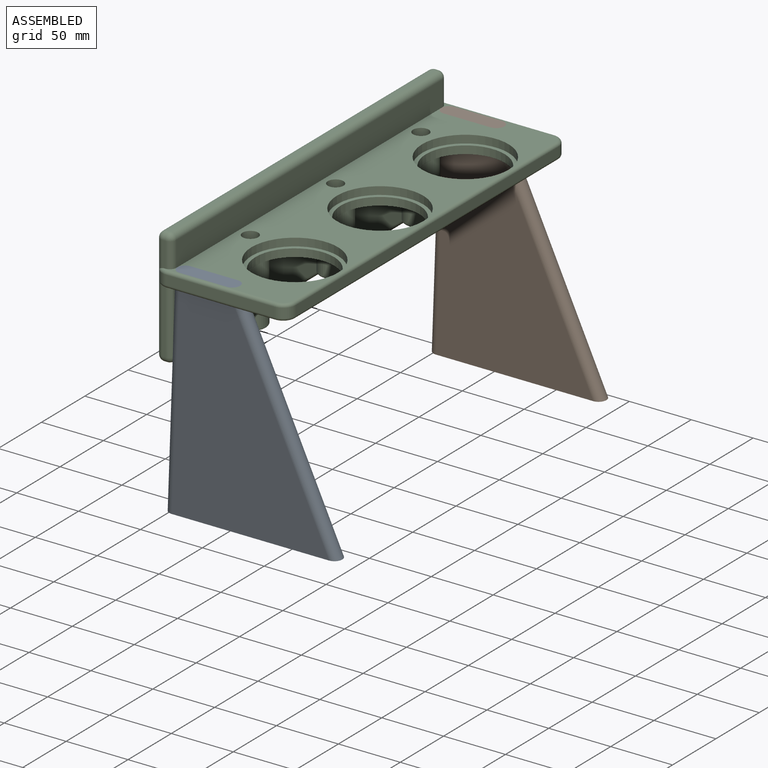
[diagram: assembled view]
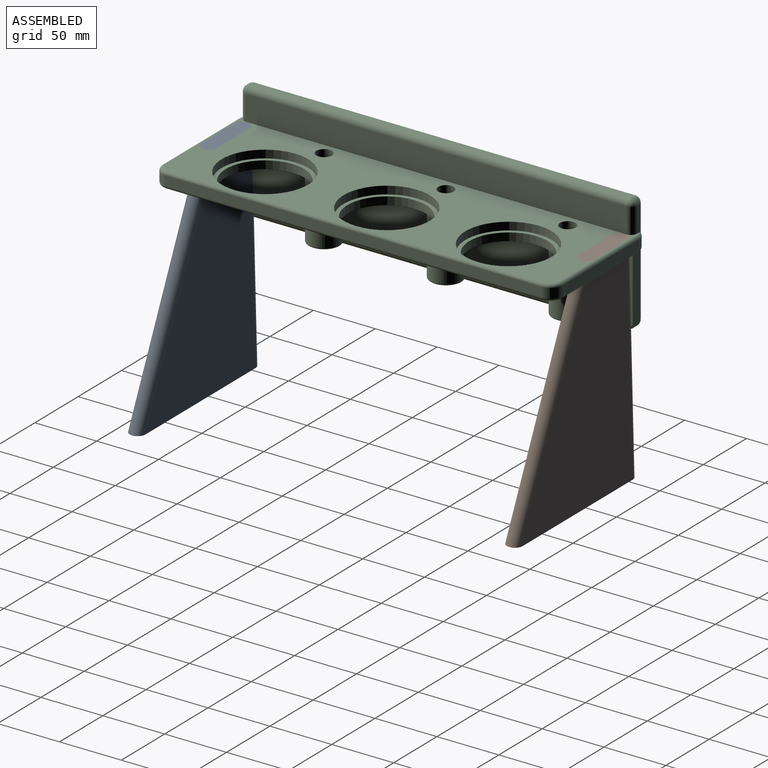
[diagram: assembled view, second angle]
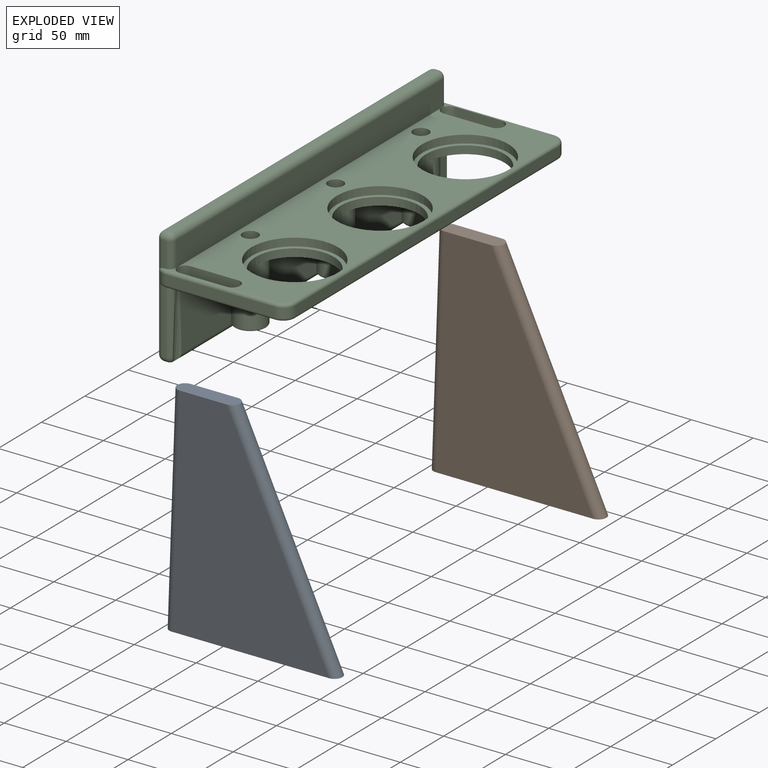
[diagram: exploded view]
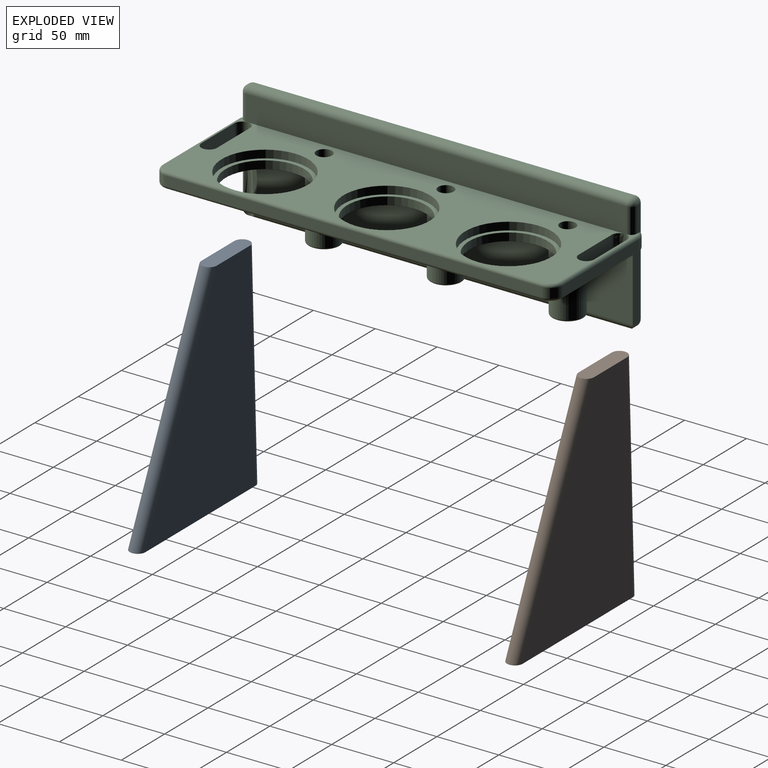
[diagram: exploded view, second angle]
ASSEMBLY  parts=3 mates=2
PART A: 6 faces, bbox 139.7x12.7x177.8 mm
  f0: plane 50.8x12.7mm, normal (0,0,1), area 610.5mm2, adj f2,f3,f4,f5
  f1: plane 139.7x12.7mm, normal (0,0,-1), area 1739.7mm2, adj f2,f3,f4,f5
  f2: plane 177.8x127mm, normal (0,1,0), area 14677.4mm2, adj f0,f1,f3,f5
  f3: bspline ~177.8x114.3mm, area 3726.2mm2, adj f0,f1,f2,f4
  f4: plane 177.8x127mm, normal (0,-1,0), area 14677.4mm2, adj f0,f1,f3,f5
  f5: bspline ~177.8x91.02mm, area 3543.5mm2, adj f0,f1,f2,f4
PART B: 6 faces, bbox 139.7x12.7x177.8 mm
  f0: plane 50.8x12.7mm, normal (0,0,1), area 610.5mm2, adj f2,f3,f4,f5
  f1: plane 139.7x12.7mm, normal (0,0,-1), area 1739.7mm2, adj f2,f3,f4,f5
  f2: plane 177.8x127mm, normal (0,1,0), area 14677.4mm2, adj f0,f1,f3,f5
  f3: bspline ~177.8x114.3mm, area 3726.2mm2, adj f0,f1,f2,f4
  f4: plane 177.8x127mm, normal (0,-1,0), area 14677.4mm2, adj f0,f1,f3,f5
  f5: bspline ~177.8x91.02mm, area 3543.5mm2, adj f0,f1,f2,f4
PART C: 87 faces, bbox 146.6x326x203.7 mm
  f0: plane 318.77x98.3mm, normal (0,0,1), area 16448.1mm2, adj f1,f2,f3,f7,f9,f10,f20,f21
  f1: cylinder r=6.35mm len=58.42mm, axis (0,0,1), area 2330.9mm2, adj f0,f79
  f2: cylinder r=6.35mm len=58.42mm, axis (0,0,1), area 2330.9mm2, adj f0,f78
  f3: cylinder r=6.35mm len=58.42mm, axis (0,0,1), area 2330.9mm2, adj f0,f77
  f4: plane 89.71x52.07mm, normal (1,0,0), area 4392.6mm2, adj f13,f55,f73,f75,f80,f81
  f5: plane 62.51x52.07mm, normal (1,0,0), area 3038.1mm2, adj f13,f55,f73,f81,f86
  f6: plane 89.71x52.07mm, normal (1,0,0), area 4392.6mm2, adj f13,f55,f71,f75,f80,f82
  f7: plane 20.7x2.71mm, normal (0,-1,0), area 51.7mm2, adj f0,f42,f56,f61,f62
  f8: plane 52.45x7.79mm, normal (0,1,0), area 396.9mm2, adj f12,f13,f45,f58,f64
  f9: bspline ~177.8x91.02mm, area 106.3mm2, adj f0,f13,f22,f45
  f10: torus R=7.62mm, axis (0,0,-1), area 28.1mm2, adj f0,f11,f31,f46,f64
  f11: cylinder r=10.16mm len=8.34mm, axis (0,0,-1), area 74.6mm2, adj f10,f12,f19,f64
  f12: torus R=7.62mm, axis (0,0,1), area 28.1mm2, adj f8,f11,f13,f35,f64
  f13: plane 319.29x98.81mm, normal (0,0,-1), area 17200.7mm2, adj f4,f5,f6,f8,f9,f12,f14,f15
  f14: cylinder r=31.75mm len=63.5mm, axis (0,0,1), area 1266.8mm2, adj f13,f29
  f15: cylinder r=31.75mm len=63.5mm, axis (0,0,1), area 1266.8mm2, adj f13,f27
  f16: cylinder r=31.75mm len=63.5mm, axis (0,0,1), area 1266.8mm2, adj f13,f25
  f17: plane 303.53x7.62mm, normal (1,0,0), area 2312.9mm2, adj f32,f33,f37,f40
  f18: plane 87.63x7.62mm, normal (0,-1,0), area 667.7mm2, adj f30,f34,f40,f43
  f19: plane 87.63x7.62mm, normal (0,1,0), area 667.7mm2, adj f11,f31,f35,f37
  f20: plane 44.45x12.7mm, normal (0,-1,0), area 524.2mm2, adj f0,f13,f21,f23
  f21: bspline ~177.8x114.3mm, area 266.4mm2, adj f0,f13,f20,f22
  f22: plane 44.45x12.7mm, normal (0,1,0), area 524.2mm2, adj f0,f9,f13,f21
  f23: bspline ~177.8x91.02mm, area 106.3mm2, adj f0,f13,f20,f45
  f24: cylinder r=34.92mm len=69.85mm, axis (0,0,1), area 1393.4mm2, adj f0,f25
  f25: plane 69.85x69.85mm, normal (0,0,1), area 665.1mm2, adj f16,f24
  f26: cylinder r=34.92mm len=69.85mm, axis (0,0,1), area 1393.4mm2, adj f0,f27
  f27: plane 69.85x69.85mm, normal (0,0,1), area 665.1mm2, adj f15,f26
  f28: cylinder r=34.92mm len=69.85mm, axis (0,0,1), area 1393.4mm2, adj f0,f29
  f29: plane 69.85x69.85mm, normal (0,0,1), area 665.1mm2, adj f14,f28
  f30: cylinder r=2.54mm len=87.63mm, axis (1,0,0), area 349.6mm2, adj f0,f18,f41,f42
  f31: cylinder r=2.54mm len=87.63mm, axis (-1,0,0), area 349.6mm2, adj f0,f10,f19,f38
  f32: cylinder r=2.54mm len=303.53mm, axis (0,1,0), area 1211mm2, adj f0,f17,f38,f41
  f33: cylinder r=2.54mm len=303.53mm, axis (0,1,0), area 1211mm2, adj f13,f17,f36,f39
  f34: cylinder r=2.54mm len=87.63mm, axis (-1,0,0), area 349.6mm2, adj f13,f18,f39,f44
  f35: cylinder r=2.54mm len=87.63mm, axis (1,0,0), area 349.6mm2, adj f12,f13,f19,f36
  f36: torus R=7.62mm, axis (0,0,1), area 57.9mm2, adj f13,f33,f35,f37
  f37: cylinder r=10.16mm len=10.16mm, axis (0,0,1), area 121.6mm2, adj f17,f19,f36,f38
  f38: torus R=7.62mm, axis (0,0,-1), area 57.9mm2, adj f0,f31,f32,f37
  f39: torus R=7.62mm, axis (0,0,1), area 57.9mm2, adj f13,f33,f34,f40
  f40: cylinder r=10.16mm len=10.16mm, axis (0,0,-1), area 121.6mm2, adj f17,f18,f39,f41
  f41: torus R=7.62mm, axis (0,0,-1), area 57.9mm2, adj f0,f30,f32,f40
  f42: torus R=7.62mm, axis (0,0,-1), area 28.1mm2, adj f0,f7,f30,f43,f56
  f43: cylinder r=10.16mm len=8.34mm, axis (0,0,1), area 74.6mm2, adj f18,f42,f44,f56
  f44: torus R=7.62mm, axis (0,0,1), area 28.1mm2, adj f13,f34,f43,f47,f56
  f45: plane 312.42x85.09mm, normal (1,0,0), area 8266.7mm2, adj f0,f8,f9,f13,f23,f55,f61,f67
  f46: plane 20.7x2.71mm, normal (0,1,0), area 51.7mm2, adj f0,f10,f64,f68,f70
  f47: plane 52.45x2.71mm, normal (0,-1,0), area 132.4mm2, adj f13,f44,f51,f52,f56
  f48: plane 307.34x2.54mm, normal (0,0,-1), area 780.6mm2, adj f52,f55,f57,f58
  f49: plane 307.34x2.54mm, normal (0,0,1), area 780.6mm2, adj f62,f63,f67,f68
  f50: plane 307.34x85.09mm, normal (-1,0,0), area 26151.6mm2, adj f56,f57,f63,f64
  f51: cylinder r=5.08mm len=52.07mm, axis (0,0,1), area 315.9mm2, adj f13,f47,f53,f86
  f52: cylinder r=5.08mm len=5.08mm, axis (1,0,0), area 20.3mm2, adj f47,f48,f53,f54
  f53: sphere r=5.08mm, area 29.5mm2, adj f51,f52,f55,f86
  f54: sphere r=5.08mm, area 40.5mm2, adj f52,f56,f57
  f55: cylinder r=5.08mm len=312.42mm, axis (0,-1,0), area 2451.1mm2, adj f4,f5,f6,f45,f48,f53,f58,f72
  f56: cylinder r=5.08mm len=85.09mm, axis (0,0,-1), area 641mm2, adj f7,f42,f43,f44,f47,f50,f54,f59
  f57: cylinder r=5.08mm len=307.34mm, axis (0,1,0), area 2452.5mm2, adj f48,f50,f54,f60
  f58: cylinder r=5.08mm len=7.62mm, axis (-1,0,0), area 46.1mm2, adj f8,f48,f55,f60
  f59: sphere r=5.08mm, area 40.5mm2, adj f56,f62,f63
  f60: sphere r=5.08mm, area 40.5mm2, adj f57,f58,f64
  f61: cylinder r=5.08mm len=20.32mm, axis (0,0,1), area 162.1mm2, adj f0,f7,f45,f65
  f62: cylinder r=5.08mm len=5.08mm, axis (-1,0,0), area 20.3mm2, adj f7,f49,f59,f65
  f63: cylinder r=5.08mm len=307.34mm, axis (0,-1,0), area 2452.5mm2, adj f49,f50,f59,f66
  f64: cylinder r=5.08mm len=85.09mm, axis (0,0,1), area 641mm2, adj f8,f10,f11,f12,f46,f50,f60,f66
  f65: sphere r=5.08mm, area 40.5mm2, adj f61,f62,f67
  f66: sphere r=5.08mm, area 40.5mm2, adj f63,f64,f68
  f67: cylinder r=5.08mm len=307.34mm, axis (0,1,0), area 2452.5mm2, adj f45,f49,f65,f69
  f68: cylinder r=5.08mm len=5.08mm, axis (1,0,0), area 20.3mm2, adj f46,f49,f66,f69
  f69: sphere r=5.08mm, area 40.5mm2, adj f67,f68,f70
  f70: cylinder r=5.08mm len=20.32mm, axis (0,0,-1), area 162.1mm2, adj f0,f45,f46,f69
  f71: cylinder r=12.7mm len=50.8mm, axis (0,0,-1), area 3294.8mm2, adj f6,f13,f45,f82
  f72: plane 22.86x22mm, normal (0,0,-1), area 405.4mm2, adj f55,f82
  f73: cylinder r=12.7mm len=50.8mm, axis (0,0,-1), area 3294.8mm2, adj f4,f5,f13,f81
  f74: plane 22.86x22mm, normal (0,0,-1), area 405.4mm2, adj f55,f81
  f75: cylinder r=12.7mm len=50.8mm, axis (0,0,-1), area 3294.8mm2, adj f4,f6,f13,f80
  f76: plane 22.86x22mm, normal (0,0,-1), area 405.4mm2, adj f55,f80
  f77: plane 12.7x12.7mm, normal (0,0,1), area 126.7mm2, adj f3
  f78: plane 12.7x12.7mm, normal (0,0,1), area 126.7mm2, adj f2
  f79: plane 12.7x12.7mm, normal (0,0,1), area 126.7mm2, adj f1
  f80: torus R=11.43mm, axis (0,0,-1), area 127.7mm2, adj f4,f6,f75,f76
  f81: torus R=11.43mm, axis (0,0,-1), area 127.7mm2, adj f4,f5,f73,f74
  f82: torus R=11.43mm, axis (0,0,-1), area 127.7mm2, adj f6,f45,f71,f72
  f83: plane 44.45x12.7mm, normal (0,-1,0), area 524.2mm2, adj f0,f13,f84,f86
  f84: bspline ~177.8x114.3mm, area 266.4mm2, adj f0,f13,f83,f85
  f85: plane 44.45x12.7mm, normal (0,1,0), area 524.2mm2, adj f0,f13,f84,f86
  f86: bspline ~177.8x91.02mm, area 685.6mm2, adj f0,f5,f13,f45,f51,f53,f55,f83
PLACE A at identity
PLACE B at identity
PLACE C at identity
MATE fastened B.f0 <-> C.f0  axis (0,0,1) through (-38.1,146.05,177.8)mm
MATE fastened A.f0 <-> C.f0  axis (0,0,1) through (-38.1,-146.05,177.8)mm
